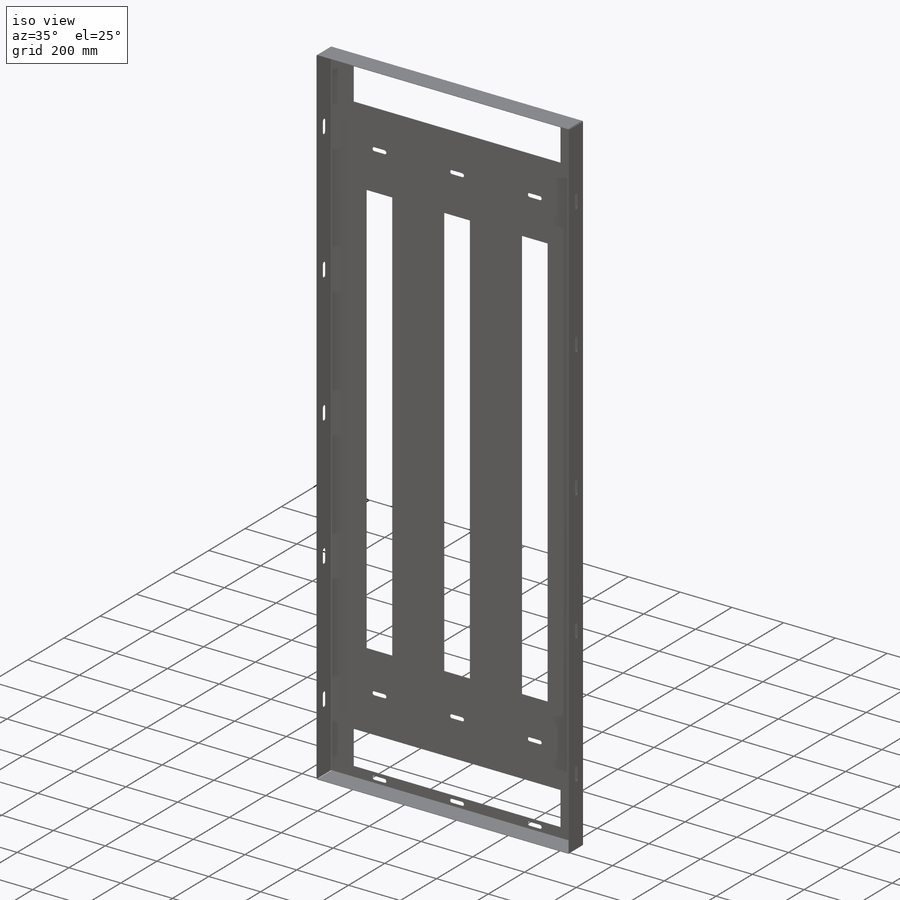
[diagram: iso view]
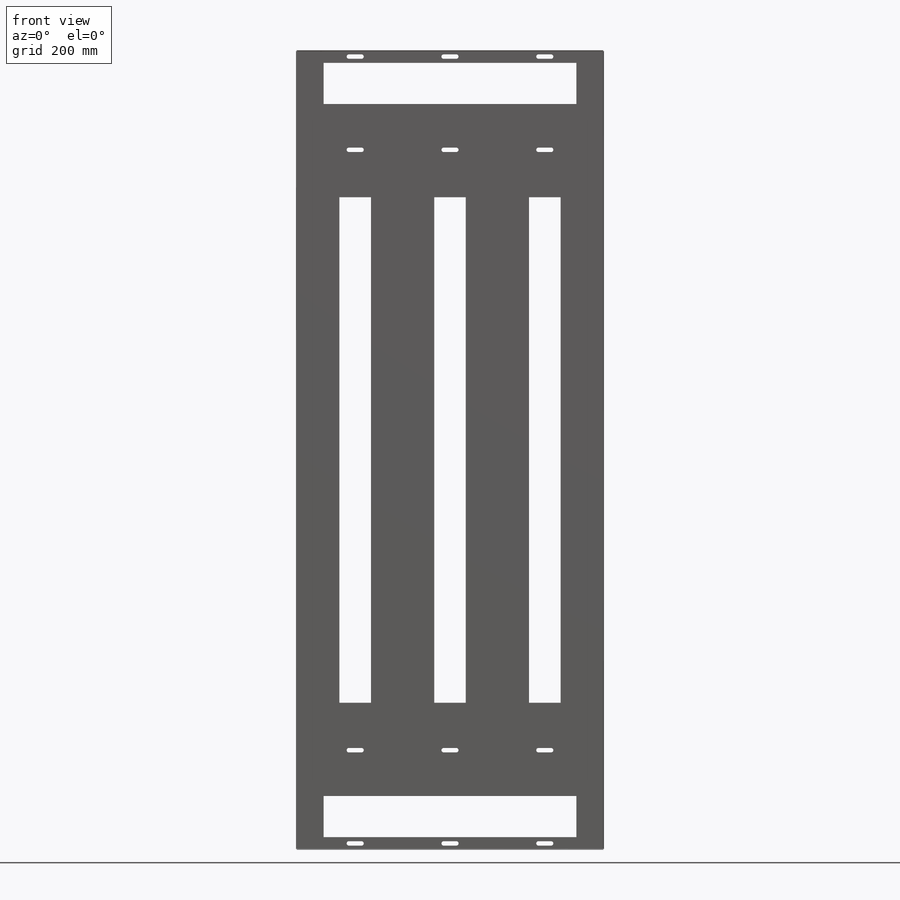
[diagram: front view]
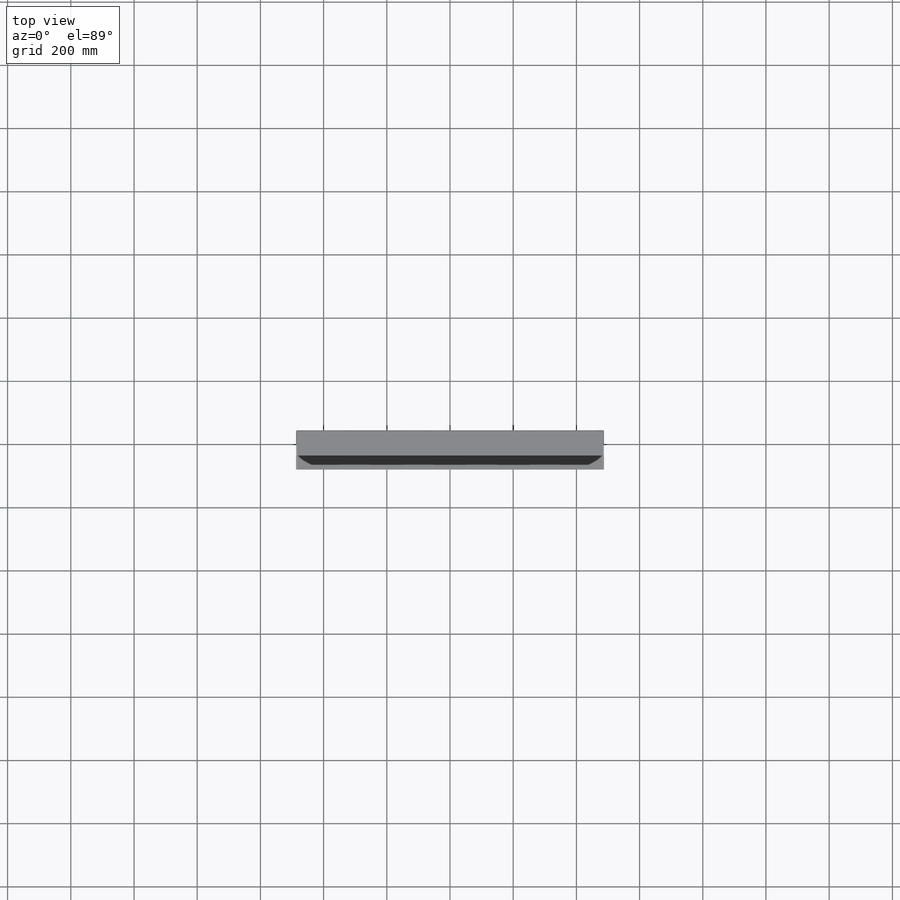
[diagram: top view]
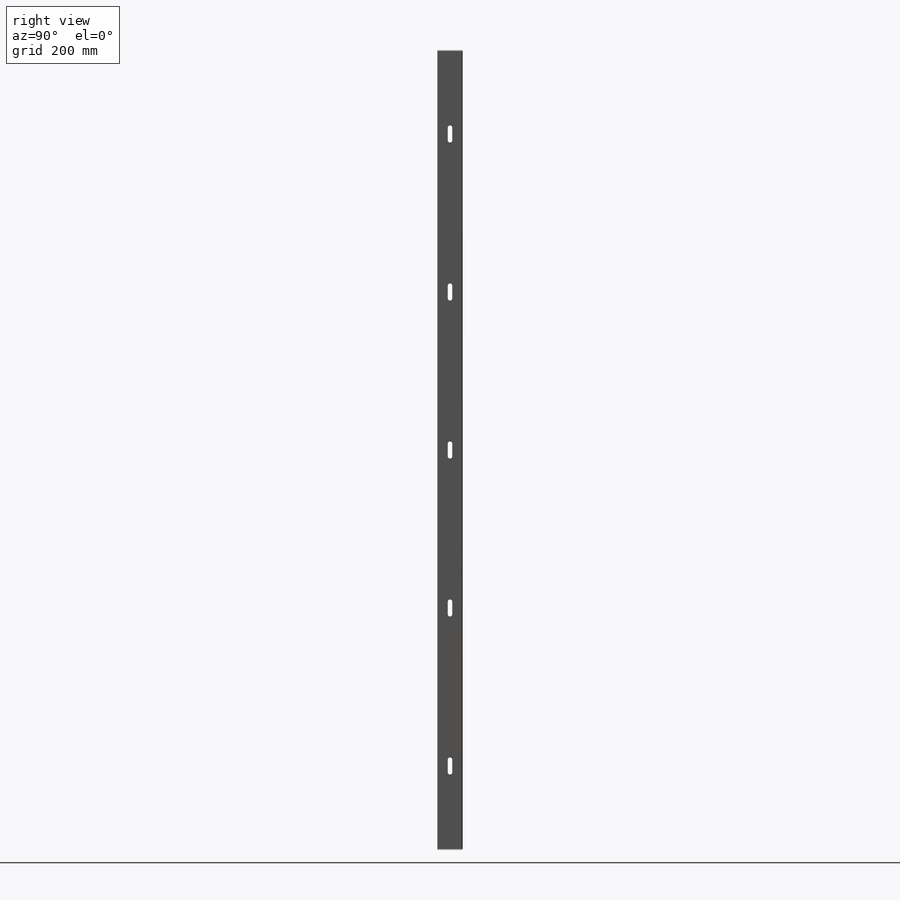
[diagram: right view]
SOLIDWORKS PART (.sldprt)
format: sldprt  version: not decoded by parser v0  size: 1,053,184 bytes
history: native  units: mm
features: sheet_metal_op x27, cut_extrude x12, pattern_linear x10, extrude x3, material x1, sketch x1 + 5 further entries (+11 scaffold rows collapsed)
feature tree (70):
  scaffold x11  (default folders/planes/origin — collapsed)
  material  "Materiál <není určen>"
  "Popisy"  RD2=1128.932521mm
  sketch  "Skica1"  dims[D1=975.0mm D2=2530.0mm]
  sheet_metal_op  "Plechový díl1"
  sheet_metal_op  "Základní plech1"
  sheet_metal_op  "Skica11"
  sheet_metal_op  "Skica12"
  sheet_metal_op  "Skica13"
  sheet_metal_op  "Skica14"
  sheet_metal_op  "Ohyb z hrany2"
  sheet_metal_op  "Ohyb z hrany3"
  sheet_metal_op  "Ohyb z hrany4"
  sheet_metal_op  "Skica15"
  cut_extrude  "Odebrat vysunutím1"  [1 undecoded]
  pattern_linear  "LinPole1"  Count1=2 Count2=1 Spacing1=250mm Spacing2=50mm
  pattern_linear  "LinPole2"  Count1=2 Count2=1 Spacing1=250mm Spacing2=50mm
  sheet_metal_op  "Skica16"
  cut_extrude  "Odebrat vysunutím2"  Depth=10mm
  sheet_metal_op  "Skica17"
  cut_extrude  "Odebrat vysunutím3"  [1 undecoded]
  pattern_linear  "LinPole3"  Count1=2 Count2=2 Spacing1=300mm Spacing2=300mm
  sheet_metal_op  "Skica18"
  cut_extrude  "Odebrat vysunutím4"  [1 undecoded]
  pattern_linear  "LinPole4"  Count1=3 Count2=3 Spacing1=500mm Spacing2=500mm
  sheet_metal_op  "Skica19"
  cut_extrude  "Odebrat vysunutím5"  [1 undecoded]
  pattern_linear  "LinPole5"  Count1=4 Count2=4 Spacing1=250mm Spacing2=250mm
  sheet_metal_op  "Skica20"
  sheet_metal_op  "Skica21"
  extrude  "Vysunout2"  Depth=1.5mm
  sheet_metal_op  "Skica22"
  cut_extrude  "Odebrat vysunutím6"  Depth=10mm
  pattern_linear  "LinPole6"  Count1=2 Count2=1 Spacing1=300mm Spacing2=50mm
  pattern_linear  "LinPole7"  Count1=2 Count2=1 Spacing1=300mm Spacing2=50mm
  sheet_metal_op  "Skica23"
  cut_extrude  "Odebrat vysunutím7"  Depth=10mm
  pattern_linear  "LinPole8"  Count1=2 Count2=2 Spacing1=300mm Spacing2=300mm
  sheet_metal_op  "Skica24"
  cut_extrude  "Odebrat vysunutím8"  Depth=10mm
  pattern_linear  "LinPole9"  Count1=4 Count2=4 Spacing1=300mm Spacing2=300mm
  sheet_metal_op  "Skica25"
  extrude  "Přidat vysunutím1"  Depth=1.5mm
  sheet_metal_op  "Skica26"
  extrude  "Přidat vysunutím2"  Depth=1.5mm
  sheet_metal_op  "Skica27"
  cut_extrude  "Odebrat vysunutím9"  [1 undecoded]
  sheet_metal_op  "Skica28"
  cut_extrude  "Odebrat vysunutím10"  Depth=1.5mm
  pattern_linear  "LinPole10"  Count1=2 Count2=1 Spacing1=545mm Spacing2=10mm
  sheet_metal_op  "Skica29"
  cut_extrude  "Odebrat vysunutím11"  Depth=10mm
  sheet_metal_op  "Skica30"
  cut_extrude  "Odebrat vysunutím12"  Depth=2mm
  "Rozvinutý tvar1"
  sheet_metal_op  "Čáry ohybu1"
  sheet_metal_op  "Vymezovací rámeček1"
  "Rozvinutí-<Ohyb z hrany2>1"
  "Rozvinutí-<Ohyb z hrany3>1"
  "Rozvinutí-<Ohyb z hrany4>1"
decode coverage: 21 of 53 modeling features carry decoded parameters; 5 rows unclassified (native names shown)
note: 5 parameter values undecoded
summary: no parameter record found for 5 features
note: suppression state not decoded; provenance and decode notes live in map.json
